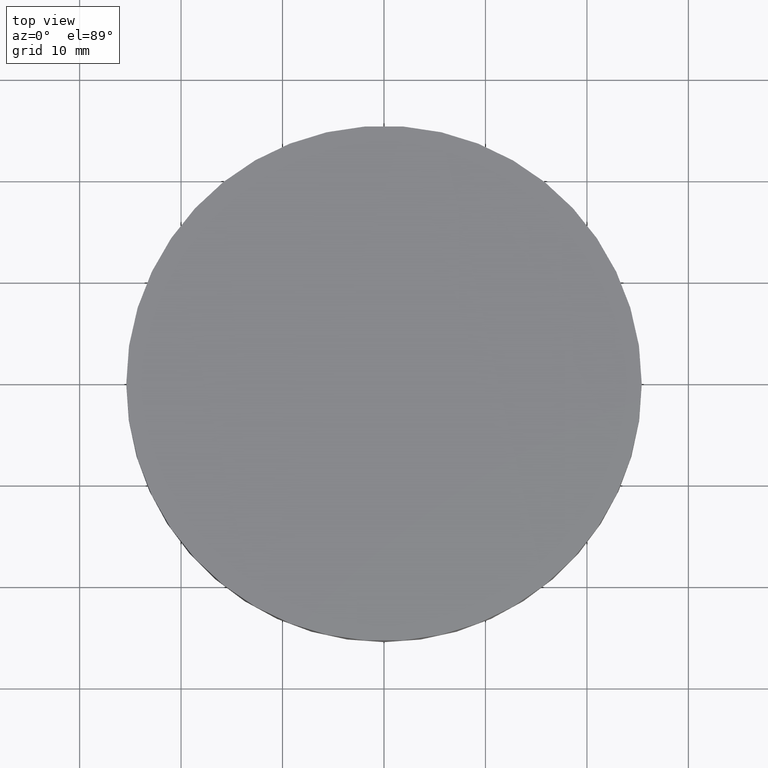
[diagram: clean part render]
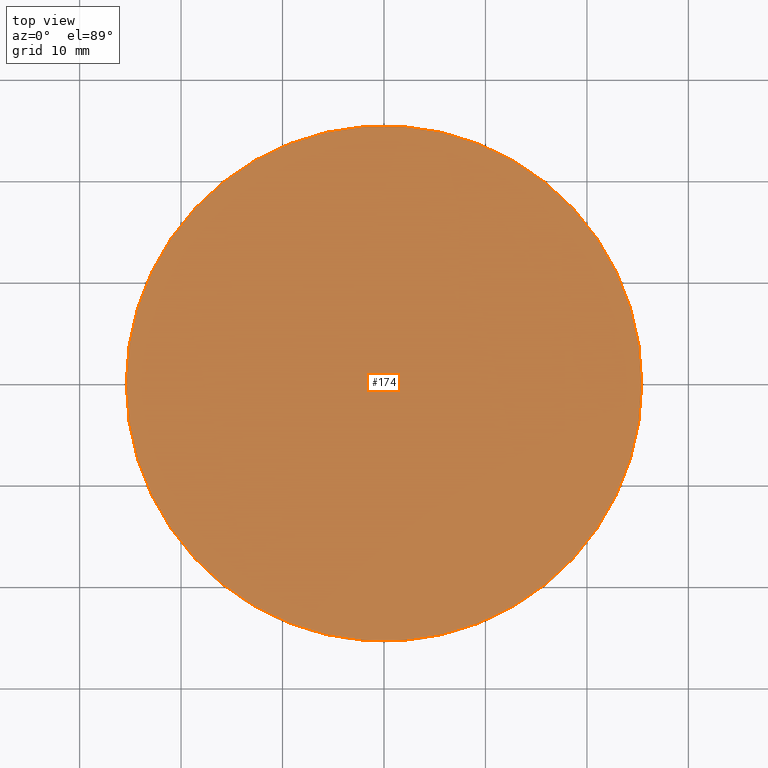
[diagram: same view with one face highlighted and labeled with its STEP entity id]
A machine part, top view. The second image highlights one B-rep face of the part: STEP entity #174.
In plain terms, the highlighted planar face has unit normal (0, 0, 1).
Its self-contained STEP definition (entity closure, byte-faithful):
#13 = CARTESIAN_POINT ( 'NONE',  ( 9.992007221626412800E-016, 4.884981308350691100E-015, 6.000000000000000000 ) ) ;
#34 = EDGE_CURVE ( 'NONE', #128, #234, #213, .T. ) ;
#44 = EDGE_CURVE ( 'NONE', #234, #128, #208, .T. ) ;
#51 = DIRECTION ( 'NONE',  ( 1.000000000000000000, 0.0000000000000000000, -0.0000000000000000000 ) ) ;
#63 = AXIS2_PLACEMENT_3D ( 'NONE', #147, #162, #51 ) ;
#64 = ORIENTED_EDGE ( 'NONE', *, *, #44, .F. ) ;
#65 = DIRECTION ( 'NONE',  ( -0.0000000000000000000, -0.0000000000000000000, -1.000000000000000000 ) ) ;
#68 = FACE_OUTER_BOUND ( 'NONE', #230, .T. ) ;
#70 = PLANE ( 'NONE',  #63 ) ;
#82 = DIRECTION ( 'NONE',  ( 1.000000000000000000, 0.0000000000000000000, 0.0000000000000000000 ) ) ;
#105 = CARTESIAN_POINT ( 'NONE',  ( 9.992007221626412800E-016, 4.884981308350691100E-015, 6.000000000000000000 ) ) ;
#128 = VERTEX_POINT ( 'NONE', #177 ) ;
#144 = DIRECTION ( 'NONE',  ( -0.0000000000000000000, -0.0000000000000000000, -1.000000000000000000 ) ) ;
#146 = AXIS2_PLACEMENT_3D ( 'NONE', #13, #144, #82 ) ;
#147 = CARTESIAN_POINT ( 'NONE',  ( 0.0000000000000000000, 52.02000000000000300, 6.000000000000000000 ) ) ;
#162 = DIRECTION ( 'NONE',  ( 0.0000000000000000000, 0.0000000000000000000, 1.000000000000000000 ) ) ;
#173 = DIRECTION ( 'NONE',  ( 1.000000000000000000, 0.0000000000000000000, 0.0000000000000000000 ) ) ;
#174 = ADVANCED_FACE ( 'NONE', ( #68 ), #70, .T. ) ;
#177 = CARTESIAN_POINT ( 'NONE',  ( -25.39999999999999900, 7.995584178184967200E-015, 6.000000000000000000 ) ) ;
#199 = ORIENTED_EDGE ( 'NONE', *, *, #34, .F. ) ;
#208 = CIRCLE ( 'NONE', #146, 25.39999999999999900 ) ;
#213 = CIRCLE ( 'NONE', #233, 25.39999999999999900 ) ;
#216 = CARTESIAN_POINT ( 'NONE',  ( 25.39999999999999900, 4.884981308350691100E-015, 6.000000000000000000 ) ) ;
#230 = EDGE_LOOP ( 'NONE', ( #64, #199 ) ) ;
#233 = AXIS2_PLACEMENT_3D ( 'NONE', #105, #65, #173 ) ;
#234 = VERTEX_POINT ( 'NONE', #216 ) ;